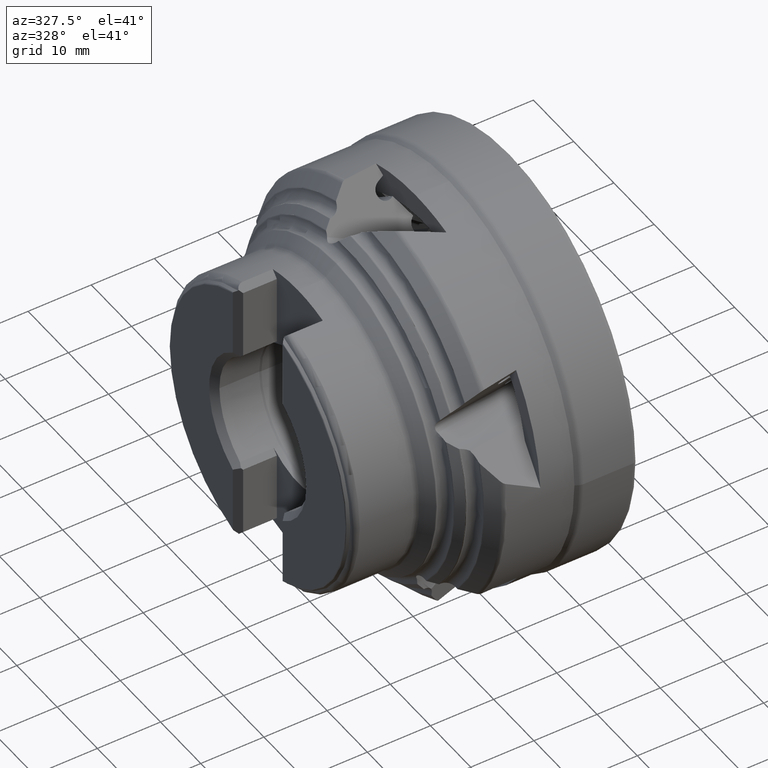
[diagram: clean part render]
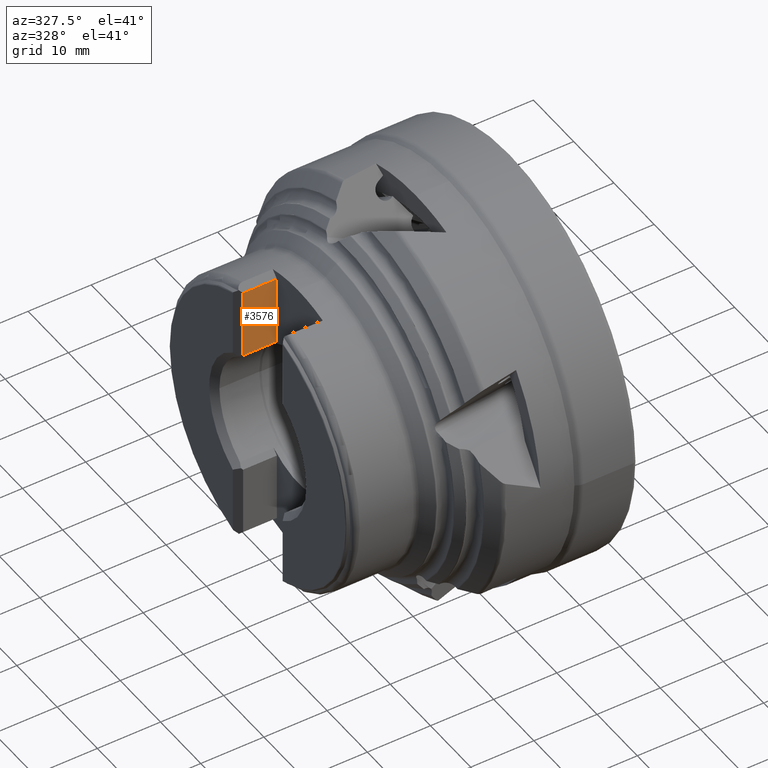
[diagram: same view with one face highlighted and labeled with its STEP entity id]
A machine part, auxiliary view. The second image highlights one B-rep face of the part: STEP entity #3576.
In plain terms, the highlighted planar face has unit normal (-0, 1, -0).
Its self-contained STEP definition (entity closure, byte-faithful):
#2833 = EDGE_CURVE ( 'NONE', #2953, #2950, #9670, .T. ) ;
#2834 = EDGE_CURVE ( 'NONE', #2950, #2958, #9676, .T. ) ;
#2835 = EDGE_CURVE ( 'NONE', #2957, #2958, #9684, .T. ) ;
#2836 = EDGE_CURVE ( 'NONE', #2953, #2957, #9675, .T. ) ;
#2950 = VERTEX_POINT ( 'NONE', #9877 ) ;
#2953 = VERTEX_POINT ( 'NONE', #9880 ) ;
#2957 = VERTEX_POINT ( 'NONE', #9884 ) ;
#2958 = VERTEX_POINT ( 'NONE', #9885 ) ;
#2999 = EDGE_LOOP ( 'NONE', ( #3195, #3196, #3197, #3198 ) ) ;
#3195 = ORIENTED_EDGE ( 'NONE', *, *, #2833, .T. ) ;
#3196 = ORIENTED_EDGE ( 'NONE', *, *, #2834, .T. ) ;
#3197 = ORIENTED_EDGE ( 'NONE', *, *, #2835, .F. ) ;
#3198 = ORIENTED_EDGE ( 'NONE', *, *, #2836, .F. ) ;
#3576 = ADVANCED_FACE ( 'NONE', ( #10018 ), #10019, .F. ) ;
#9080 = VECTOR ( 'NONE', #9683, 1000.000000000000000 ) ;
#9096 = VECTOR ( 'NONE', #9681, 1000.000000000000000 ) ;
#9098 = VECTOR ( 'NONE', #9689, 1000.000000000000000 ) ;
#9099 = VECTOR ( 'NONE', #9687, 1000.000000000000000 ) ;
#9670 = LINE ( 'NONE', #9671, #9096 ) ;
#9671 = CARTESIAN_POINT ( 'NONE',  ( -31.89999999999995600, 5.200000000000001100, 21.13735931288071500 ) ) ;
#9675 = LINE ( 'NONE', #9688, #9098 ) ;
#9676 = LINE ( 'NONE', #9682, #9080 ) ;
#9681 = DIRECTION ( 'NONE',  ( -1.000000000000000000, -1.224606353822377300E-016, -0.0000000000000000000 ) ) ;
#9682 = CARTESIAN_POINT ( 'NONE',  ( -37.24999999999996400, 5.199999999999999300, 10.89796425943860700 ) ) ;
#9683 = DIRECTION ( 'NONE',  ( 0.0000000000000000000, -1.572059546608607900E-016, -1.000000000000000000 ) ) ;
#9684 = LINE ( 'NONE', #9686, #9099 ) ;
#9686 = CARTESIAN_POINT ( 'NONE',  ( -31.89999999999995600, 5.200000000000000200, 10.10264068711928900 ) ) ;
#9687 = DIRECTION ( 'NONE',  ( -1.000000000000000000, -1.224606353822377300E-016, -0.0000000000000000000 ) ) ;
#9688 = CARTESIAN_POINT ( 'NONE',  ( -31.89999999999995600, 5.200000000000001100, 21.13735931288071500 ) ) ;
#9689 = DIRECTION ( 'NONE',  ( 0.0000000000000000000, -1.572059546608607900E-016, -1.000000000000000000 ) ) ;
#9877 = CARTESIAN_POINT ( 'NONE',  ( -37.24999999999996400, 5.200000000000001100, 21.13735931288071500 ) ) ;
#9880 = CARTESIAN_POINT ( 'NONE',  ( -31.89999999999995600, 5.200000000000001100, 21.13735931288071500 ) ) ;
#9884 = CARTESIAN_POINT ( 'NONE',  ( -31.89999999999995600, 5.200000000000000200, 10.10264068711928900 ) ) ;
#9885 = CARTESIAN_POINT ( 'NONE',  ( -37.24999999999996400, 5.199999999999998400, 10.10264068711928900 ) ) ;
#10016 = CARTESIAN_POINT ( 'NONE',  ( -31.89999999999995600, 5.200000000000001100, 21.13735931288071500 ) ) ;
#10018 = FACE_OUTER_BOUND ( 'NONE', #2999, .T. ) ;
#10019 = PLANE ( 'NONE',  #10322 ) ;
#10021 = DIRECTION ( 'NONE',  ( -1.224606353822377300E-016, 1.000000000000000000, -1.572059546608607900E-016 ) ) ;
#10022 = DIRECTION ( 'NONE',  ( 0.0000000000000000000, 1.572059546608607900E-016, 1.000000000000000000 ) ) ;
#10322 = AXIS2_PLACEMENT_3D ( 'NONE', #10016, #10021, #10022 ) ;